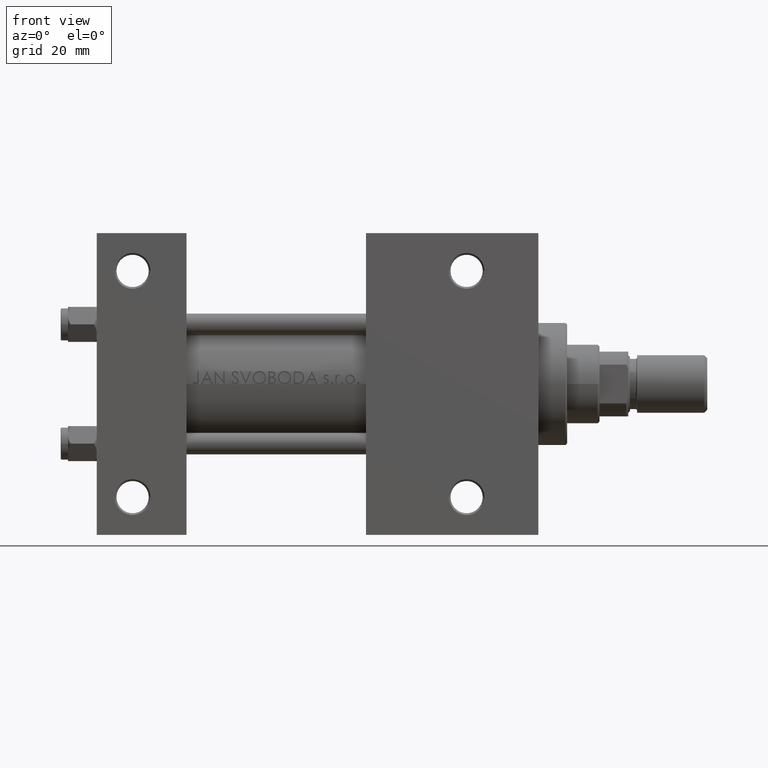
[diagram: clean part render]
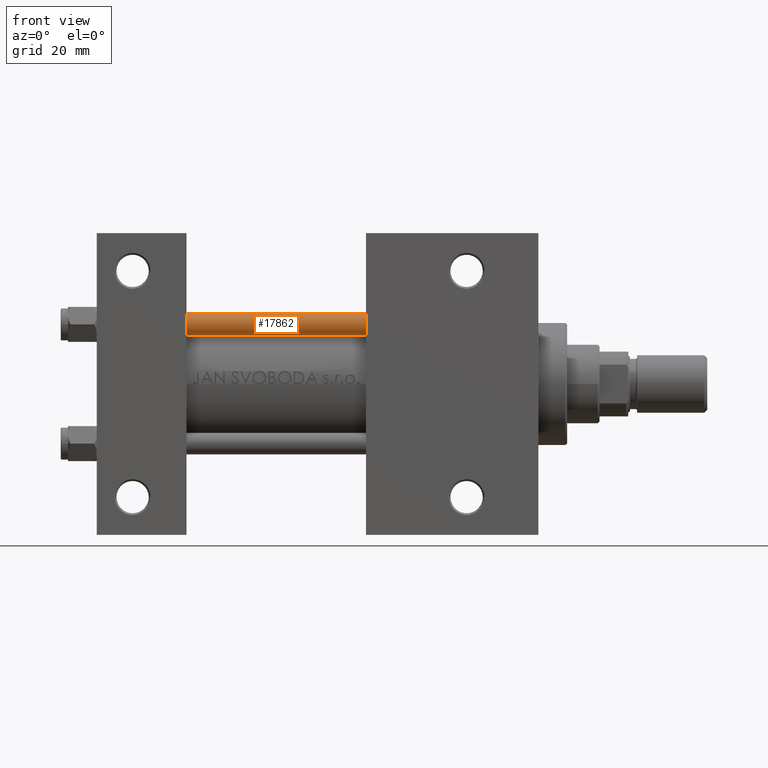
[diagram: same view with one face highlighted and labeled with its STEP entity id]
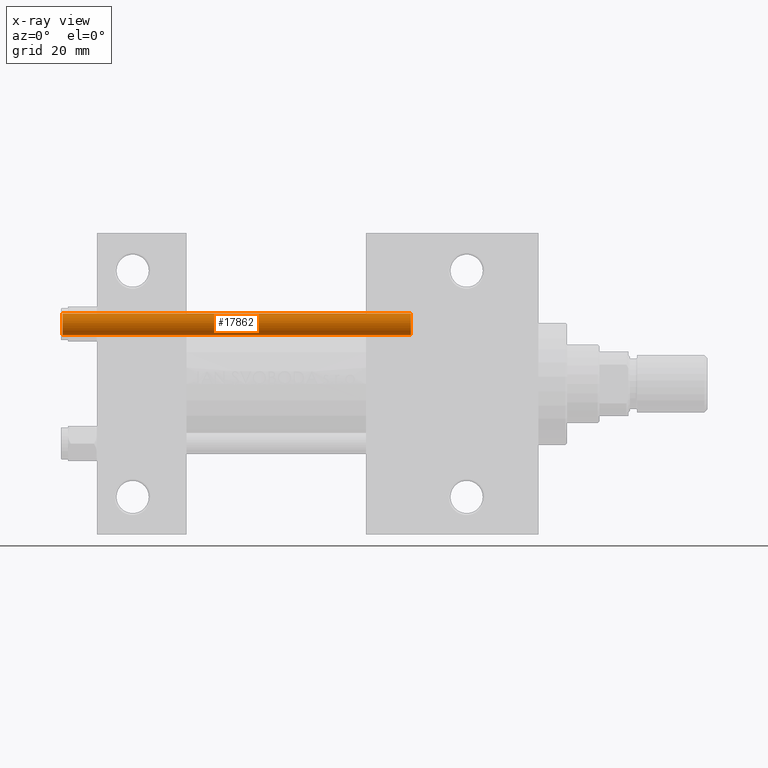
[diagram: x-ray of the same camera — body ghosted, the highlighted face saturated]
A machine part, front view. The second image highlights one B-rep face of the part: STEP entity #17862.
The next image is the same camera in x-ray: the body ghosted, the highlighted face saturated — about 0% of this face is hidden behind the body in this view.
In plain terms, the highlighted cylindrical surface (edge-blend (fillet) strip) has radius 3 mm, axis along (1, 0, 0).
Its self-contained STEP definition (entity closure, byte-faithful):
#4482 = VERTEX_POINT ( 'NONE', #18512 ) ;
#5476 = ORIENTED_EDGE ( 'NONE', *, *, #28097, .T. ) ;
#6100 = DIRECTION ( 'NONE',  ( 1.000000000000000000, 0.000000000000000000, 0.000000000000000000 ) ) ;
#7516 = CARTESIAN_POINT ( 'NONE',  ( 3.000000000000000444, 3.673940397442060361E-16, 97.50000000000001421 ) ) ;
#7576 = LINE ( 'NONE', #14383, #18117 ) ;
#7955 = ORIENTED_EDGE ( 'NONE', *, *, #16685, .T. ) ;
#9787 = CARTESIAN_POINT ( 'NONE',  ( -3.000000000000000444, 0.000000000000000000, 0.5000000000000281997 ) ) ;
#10241 = CARTESIAN_POINT ( 'NONE',  ( 3.000000000000000444, 3.673940397442060361E-16, 98.00000000000000000 ) ) ;
#10752 = ORIENTED_EDGE ( 'NONE', *, *, #17824, .T. ) ;
#10951 = CARTESIAN_POINT ( 'NONE',  ( 0.000000000000000000, 0.000000000000000000, 98.00000000000000000 ) ) ;
#12646 = DIRECTION ( 'NONE',  ( 0.000000000000000000, 0.000000000000000000, -1.000000000000000000 ) ) ;
#13712 = DIRECTION ( 'NONE',  ( 1.000000000000000000, 0.000000000000000000, 0.000000000000000000 ) ) ;
#14383 = CARTESIAN_POINT ( 'NONE',  ( -3.000000000000000444, 0.000000000000000000, 98.00000000000000000 ) ) ;
#14856 = DIRECTION ( 'NONE',  ( -0.000000000000000000, -0.000000000000000000, -1.000000000000000000 ) ) ;
#16685 = EDGE_CURVE ( 'NONE', #37277, #34879, #42847, .T. ) ;
#17824 = EDGE_CURVE ( 'NONE', #18980, #37277, #47636, .T. ) ;
#17862 = ADVANCED_FACE ( 'NONE', ( #18470 ), #37166, .T. ) ;
#18117 = VECTOR ( 'NONE', #14856, 1000.000000000000000 ) ;
#18470 = FACE_OUTER_BOUND ( 'NONE', #33193, .T. ) ;
#18512 = CARTESIAN_POINT ( 'NONE',  ( -3.000000000000000444, 0.000000000000000000, 97.50000000000001421 ) ) ;
#18980 = VERTEX_POINT ( 'NONE', #7516 ) ;
#19188 = DIRECTION ( 'NONE',  ( -1.000000000000000000, 0.000000000000000000, 0.000000000000000000 ) ) ;
#22125 = DIRECTION ( 'NONE',  ( -0.000000000000000000, -0.000000000000000000, -1.000000000000000000 ) ) ;
#23771 = CARTESIAN_POINT ( 'NONE',  ( 3.000000000000000444, 3.673940397442060361E-16, 0.5000000000000281997 ) ) ;
#28097 = EDGE_CURVE ( 'NONE', #4482, #18980, #38417, .T. ) ;
#32643 = ORIENTED_EDGE ( 'NONE', *, *, #45028, .F. ) ;
#33193 = EDGE_LOOP ( 'NONE', ( #5476, #10752, #7955, #32643 ) ) ;
#34879 = VERTEX_POINT ( 'NONE', #9787 ) ;
#34968 = CARTESIAN_POINT ( 'NONE',  ( 0.000000000000000000, 0.000000000000000000, 97.50000000000001421 ) ) ;
#35785 = DIRECTION ( 'NONE',  ( -0.000000000000000000, -0.000000000000000000, 1.000000000000000000 ) ) ;
#36216 = DIRECTION ( 'NONE',  ( -0.000000000000000000, -0.000000000000000000, -1.000000000000000000 ) ) ;
#37166 = CYLINDRICAL_SURFACE ( 'NONE', #43679, 3.000000000000000444 ) ;
#37277 = VERTEX_POINT ( 'NONE', #23771 ) ;
#38417 = CIRCLE ( 'NONE', #41556, 3.000000000000000444 ) ;
#38969 = VECTOR ( 'NONE', #36216, 1000.000000000000000 ) ;
#40511 = AXIS2_PLACEMENT_3D ( 'NONE', #42845, #35785, #13712 ) ;
#41556 = AXIS2_PLACEMENT_3D ( 'NONE', #34968, #12646, #6100 ) ;
#42845 = CARTESIAN_POINT ( 'NONE',  ( 0.000000000000000000, 0.000000000000000000, 0.5000000000000281997 ) ) ;
#42847 = CIRCLE ( 'NONE', #40511, 3.000000000000000444 ) ;
#43679 = AXIS2_PLACEMENT_3D ( 'NONE', #10951, #22125, #19188 ) ;
#45028 = EDGE_CURVE ( 'NONE', #4482, #34879, #7576, .T. ) ;
#47636 = LINE ( 'NONE', #10241, #38969 ) ;